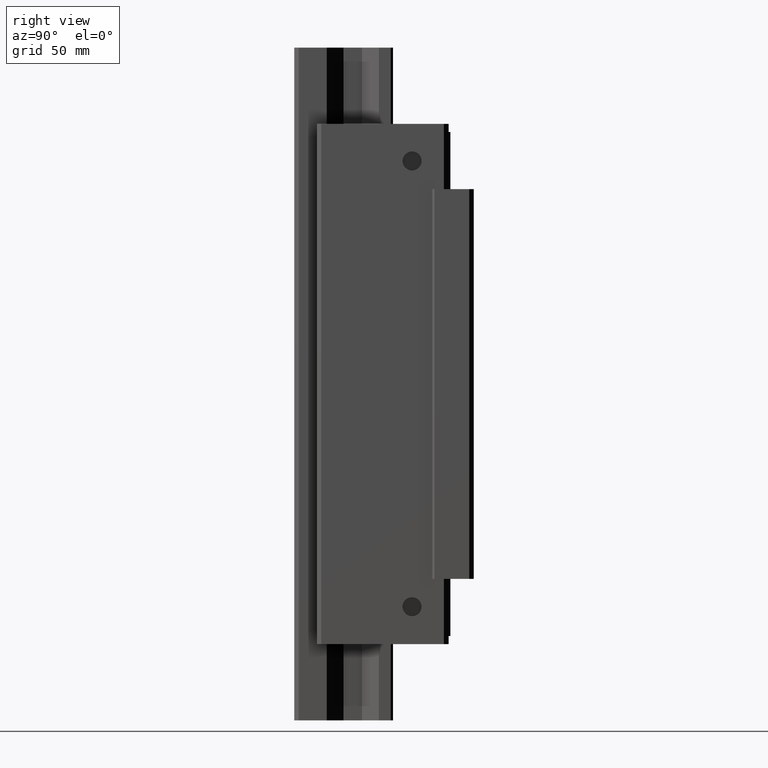
[diagram: clean part render]
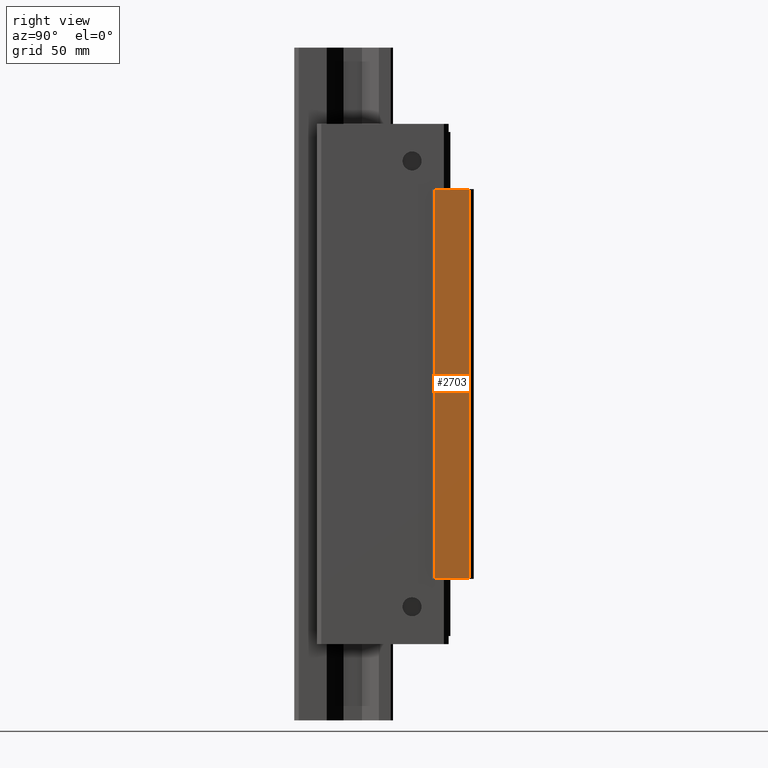
[diagram: same view with one face highlighted and labeled with its STEP entity id]
A machine part, right view. The second image highlights one B-rep face of the part: STEP entity #2703.
In plain terms, the highlighted planar face has unit normal (1, 0, 0).
Its self-contained STEP definition (entity closure, byte-faithful):
#193=DIRECTION('',(0.E0,1.E0,0.E0));
#194=VECTOR('',#193,1.550006103516E1);
#195=CARTESIAN_POINT('',(5.000001907349E1,-7.499972814697E0,-8.69E1));
#196=LINE('',#195,#194);
#701=DIRECTION('',(0.E0,1.042510918405E-14,1.E0));
#702=VECTOR('',#701,1.738E2);
#703=CARTESIAN_POINT('',(5.000001907349E1,8.000088220459E0,-8.69E1));
#704=LINE('',#703,#702);
#705=DIRECTION('',(0.E0,0.E0,1.E0));
#706=VECTOR('',#705,1.738E2);
#707=CARTESIAN_POINT('',(5.000001907349E1,-7.499972814697E0,-8.69E1));
#708=LINE('',#707,#706);
#709=DIRECTION('',(0.E0,1.E0,0.E0));
#710=VECTOR('',#709,1.550006103516E1);
#711=CARTESIAN_POINT('',(5.000001907349E1,-7.499972814697E0,8.69E1));
#712=LINE('',#711,#710);
#1389=CARTESIAN_POINT('',(5.000001907349E1,-7.499972814697E0,-8.69E1));
#1390=VERTEX_POINT('',#1389);
#1391=CARTESIAN_POINT('',(5.000001907349E1,8.000088220459E0,-8.69E1));
#1392=VERTEX_POINT('',#1391);
#1445=CARTESIAN_POINT('',(5.000001907349E1,-7.499972814697E0,8.69E1));
#1446=VERTEX_POINT('',#1445);
#1491=CARTESIAN_POINT('',(5.000001907349E1,8.000088220461E0,8.69E1));
#1492=VERTEX_POINT('',#1491);
#2692=CARTESIAN_POINT('',(5.000001907349E1,-7.499972814697E0,-8.69E1));
#2693=DIRECTION('',(1.E0,0.E0,0.E0));
#2694=DIRECTION('',(0.E0,1.E0,0.E0));
#2695=AXIS2_PLACEMENT_3D('',#2692,#2693,#2694);
#2696=PLANE('',#2695);
#2697=ORIENTED_EDGE('',*,*,#1998,.F.);
#2698=ORIENTED_EDGE('',*,*,#2187,.T.);
#2699=ORIENTED_EDGE('',*,*,#2241,.T.);
#2700=ORIENTED_EDGE('',*,*,#2685,.F.);
#2701=EDGE_LOOP('',(#2697,#2698,#2699,#2700));
#2702=FACE_OUTER_BOUND('',#2701,.F.);
#2703=ADVANCED_FACE('',(#2702),#2696,.T.);
#1998=EDGE_CURVE('',#1390,#1392,#196,.T.);
#2187=EDGE_CURVE('',#1390,#1446,#708,.T.);
#2241=EDGE_CURVE('',#1446,#1492,#712,.T.);
#2685=EDGE_CURVE('',#1392,#1492,#704,.T.);